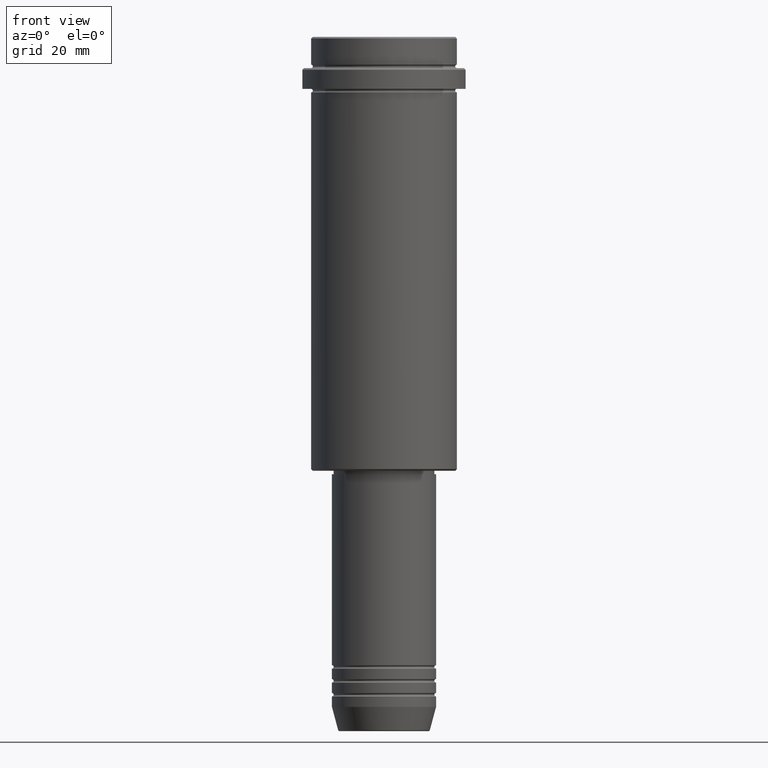
[diagram: clean part render]
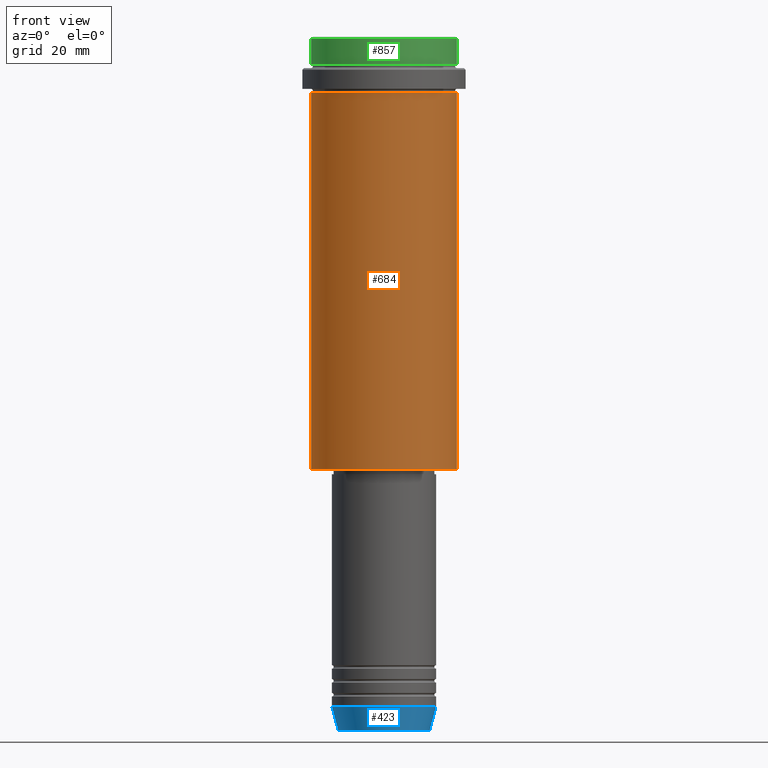
[diagram: same view with three faces highlighted in distinct colors, each labeled with its STEP entity id]
A machine part, front view with three faces highlighted in distinct colors.
Their STEP definitions:

[orange] entity #684 — the highlighted cylindrical surface (partial cylindrical patch) has radius 21 mm, axis along (-0, -0, 1).
#53 = LINE ( 'NONE', #136, #643 ) ;
#77 = CARTESIAN_POINT ( 'NONE',  ( -21.00000000000000000, 2.571758278209441661E-15, -124.5000000000000284 ) ) ;
#100 = DIRECTION ( 'NONE',  ( -0.000000000000000000, -0.000000000000000000, 1.000000000000000000 ) ) ;
#103 = DIRECTION ( 'NONE',  ( -0.000000000000000000, -0.000000000000000000, 1.000000000000000000 ) ) ;
#136 = CARTESIAN_POINT ( 'NONE',  ( -21.00000000000000000, 2.571758278209441661E-15, 0.000000000000000000 ) ) ;
#164 = VERTEX_POINT ( 'NONE', #1168 ) ;
#184 = CARTESIAN_POINT ( 'NONE',  ( 0.000000000000000000, 0.000000000000000000, 0.000000000000000000 ) ) ;
#187 = ORIENTED_EDGE ( 'NONE', *, *, #365, .T. ) ;
#199 = CARTESIAN_POINT ( 'NONE',  ( 0.000000000000000000, 0.000000000000000000, -16.00000000000000355 ) ) ;
#231 = ORIENTED_EDGE ( 'NONE', *, *, #1287, .F. ) ;
#333 = CARTESIAN_POINT ( 'NONE',  ( 21.00000000000000000, 0.000000000000000000, 0.000000000000000000 ) ) ;
#365 = EDGE_CURVE ( 'NONE', #164, #711, #533, .T. ) ;
#373 = EDGE_CURVE ( 'NONE', #906, #711, #594, .T. ) ;
#407 = DIRECTION ( 'NONE',  ( 1.000000000000000000, 0.000000000000000000, 0.000000000000000000 ) ) ;
#476 = AXIS2_PLACEMENT_3D ( 'NONE', #1090, #103, #550 ) ;
#526 = CYLINDRICAL_SURFACE ( 'NONE', #799, 21.00000000000000000 ) ;
#533 = LINE ( 'NONE', #333, #1199 ) ;
#550 = DIRECTION ( 'NONE',  ( -1.000000000000000000, 0.000000000000000000, 0.000000000000000000 ) ) ;
#589 = DIRECTION ( 'NONE',  ( -0.000000000000000000, -0.000000000000000000, 1.000000000000000000 ) ) ;
#594 = CIRCLE ( 'NONE', #637, 21.00000000000000000 ) ;
#637 = AXIS2_PLACEMENT_3D ( 'NONE', #199, #100, #986 ) ;
#643 = VECTOR ( 'NONE', #589, 1000.000000000000000 ) ;
#684 = ADVANCED_FACE ( 'NONE', ( #1167 ), #526, .T. ) ;
#711 = VERTEX_POINT ( 'NONE', #976 ) ;
#799 = AXIS2_PLACEMENT_3D ( 'NONE', #184, #954, #407 ) ;
#802 = CIRCLE ( 'NONE', #476, 21.00000000000000000 ) ;
#876 = ORIENTED_EDGE ( 'NONE', *, *, #1260, .T. ) ;
#895 = EDGE_LOOP ( 'NONE', ( #231, #876, #187, #1341 ) ) ;
#906 = VERTEX_POINT ( 'NONE', #1018 ) ;
#954 = DIRECTION ( 'NONE',  ( -0.000000000000000000, -0.000000000000000000, 1.000000000000000000 ) ) ;
#976 = CARTESIAN_POINT ( 'NONE',  ( 21.00000000000000000, 0.000000000000000000, -16.00000000000000355 ) ) ;
#986 = DIRECTION ( 'NONE',  ( 1.000000000000000000, 0.000000000000000000, 0.000000000000000000 ) ) ;
#1018 = CARTESIAN_POINT ( 'NONE',  ( -21.00000000000000000, 2.571758278209441661E-15, -16.00000000000000355 ) ) ;
#1090 = CARTESIAN_POINT ( 'NONE',  ( 0.000000000000000000, 0.000000000000000000, -124.5000000000000284 ) ) ;
#1167 = FACE_OUTER_BOUND ( 'NONE', #895, .T. ) ;
#1168 = CARTESIAN_POINT ( 'NONE',  ( 21.00000000000000000, 0.000000000000000000, -124.5000000000000284 ) ) ;
#1170 = VERTEX_POINT ( 'NONE', #77 ) ;
#1199 = VECTOR ( 'NONE', #1207, 1000.000000000000000 ) ;
#1207 = DIRECTION ( 'NONE',  ( -0.000000000000000000, -0.000000000000000000, 1.000000000000000000 ) ) ;
#1260 = EDGE_CURVE ( 'NONE', #1170, #164, #802, .T. ) ;
#1287 = EDGE_CURVE ( 'NONE', #1170, #906, #53, .T. ) ;
#1341 = ORIENTED_EDGE ( 'NONE', *, *, #373, .F. ) ;

[blue] entity #423 — the highlighted conical surface has half-angle 15 deg.
#89 = DIRECTION ( 'NONE',  ( -0.000000000000000000, -0.000000000000000000, 1.000000000000000000 ) ) ;
#115 = CARTESIAN_POINT ( 'NONE',  ( 0.000000000000000000, 0.000000000000000000, -199.6294095225512706 ) ) ;
#139 = FACE_OUTER_BOUND ( 'NONE', #1350, .T. ) ;
#244 = CARTESIAN_POINT ( 'NONE',  ( -15.00000000000000000, 1.836970198721029589E-15, -193.0000000000000000 ) ) ;
#327 = DIRECTION ( 'NONE',  ( 0.2588190451025213501, 0.000000000000000000, 0.9659258262890680902 ) ) ;
#342 = CARTESIAN_POINT ( 'NONE',  ( -13.22365507213719660, 1.728200442216588780E-15, -199.6294095225512706 ) ) ;
#378 = EDGE_CURVE ( 'NONE', #1371, #1100, #958, .T. ) ;
#409 = AXIS2_PLACEMENT_3D ( 'NONE', #903, #1122, #582 ) ;
#423 = ADVANCED_FACE ( 'NONE', ( #139 ), #470, .T. ) ;
#455 = ORIENTED_EDGE ( 'NONE', *, *, #818, .T. ) ;
#467 = LINE ( 'NONE', #907, #1293 ) ;
#470 = CONICAL_SURFACE ( 'NONE', #409, 15.00000000000000000, 0.2617993877991500740 ) ;
#481 = ORIENTED_EDGE ( 'NONE', *, *, #785, .T. ) ;
#523 = VECTOR ( 'NONE', #327, 1000.000000000000000 ) ;
#532 = DIRECTION ( 'NONE',  ( 1.000000000000000000, 0.000000000000000000, 0.000000000000000000 ) ) ;
#538 = CARTESIAN_POINT ( 'NONE',  ( 15.00000000000000000, 0.000000000000000000, -193.0000000000000000 ) ) ;
#582 = DIRECTION ( 'NONE',  ( 1.000000000000000000, 0.000000000000000000, 0.000000000000000000 ) ) ;
#622 = VERTEX_POINT ( 'NONE', #743 ) ;
#743 = CARTESIAN_POINT ( 'NONE',  ( 13.22365507213719482, 0.000000000000000000, -199.6294095225512706 ) ) ;
#769 = ORIENTED_EDGE ( 'NONE', *, *, #929, .F. ) ;
#785 = EDGE_CURVE ( 'NONE', #863, #622, #909, .T. ) ;
#812 = ORIENTED_EDGE ( 'NONE', *, *, #378, .F. ) ;
#818 = EDGE_CURVE ( 'NONE', #622, #1100, #1087, .T. ) ;
#863 = VERTEX_POINT ( 'NONE', #342 ) ;
#878 = DIRECTION ( 'NONE',  ( -0.000000000000000000, -0.000000000000000000, 1.000000000000000000 ) ) ;
#903 = CARTESIAN_POINT ( 'NONE',  ( 0.000000000000000000, 0.000000000000000000, -193.0000000000000000 ) ) ;
#907 = CARTESIAN_POINT ( 'NONE',  ( -15.00000000000000000, 1.836970198721029589E-15, -193.0000000000000000 ) ) ;
#909 = CIRCLE ( 'NONE', #1200, 13.22365507213719482 ) ;
#929 = EDGE_CURVE ( 'NONE', #863, #1371, #467, .T. ) ;
#958 = CIRCLE ( 'NONE', #1179, 15.00000000000000000 ) ;
#1087 = LINE ( 'NONE', #538, #523 ) ;
#1100 = VERTEX_POINT ( 'NONE', #1145 ) ;
#1122 = DIRECTION ( 'NONE',  ( -0.000000000000000000, -0.000000000000000000, 1.000000000000000000 ) ) ;
#1145 = CARTESIAN_POINT ( 'NONE',  ( 15.00000000000000000, 0.000000000000000000, -193.0000000000000000 ) ) ;
#1179 = AXIS2_PLACEMENT_3D ( 'NONE', #1415, #878, #1402 ) ;
#1200 = AXIS2_PLACEMENT_3D ( 'NONE', #115, #89, #532 ) ;
#1293 = VECTOR ( 'NONE', #1338, 1000.000000000000000 ) ;
#1338 = DIRECTION ( 'NONE',  ( -0.2588190451025213501, 3.169619151431772337E-17, 0.9659258262890680902 ) ) ;
#1350 = EDGE_LOOP ( 'NONE', ( #769, #481, #455, #812 ) ) ;
#1371 = VERTEX_POINT ( 'NONE', #244 ) ;
#1402 = DIRECTION ( 'NONE',  ( 1.000000000000000000, 0.000000000000000000, 0.000000000000000000 ) ) ;
#1415 = CARTESIAN_POINT ( 'NONE',  ( 0.000000000000000000, 0.000000000000000000, -193.0000000000000000 ) ) ;

[green] entity #857 — the highlighted cylindrical surface (partial cylindrical patch) has radius 21 mm, axis along (-0, -0, 1).
#28 = CYLINDRICAL_SURFACE ( 'NONE', #567, 21.00000000000000000 ) ;
#95 = ORIENTED_EDGE ( 'NONE', *, *, #668, .T. ) ;
#112 = VERTEX_POINT ( 'NONE', #948 ) ;
#133 = FACE_OUTER_BOUND ( 'NONE', #397, .T. ) ;
#146 = VERTEX_POINT ( 'NONE', #1267 ) ;
#151 = AXIS2_PLACEMENT_3D ( 'NONE', #924, #1351, #1171 ) ;
#309 = VERTEX_POINT ( 'NONE', #991 ) ;
#329 = ORIENTED_EDGE ( 'NONE', *, *, #911, .F. ) ;
#397 = EDGE_LOOP ( 'NONE', ( #329, #1411, #741, #95 ) ) ;
#462 = DIRECTION ( 'NONE',  ( -0.000000000000000000, -0.000000000000000000, 1.000000000000000000 ) ) ;
#564 = DIRECTION ( 'NONE',  ( -0.000000000000000000, -0.000000000000000000, 1.000000000000000000 ) ) ;
#567 = AXIS2_PLACEMENT_3D ( 'NONE', #1113, #462, #1012 ) ;
#604 = CARTESIAN_POINT ( 'NONE',  ( 0.000000000000000000, 0.000000000000000000, -0.5000000000000108802 ) ) ;
#668 = EDGE_CURVE ( 'NONE', #146, #309, #1382, .T. ) ;
#686 = VERTEX_POINT ( 'NONE', #836 ) ;
#714 = EDGE_CURVE ( 'NONE', #112, #146, #761, .T. ) ;
#734 = CIRCLE ( 'NONE', #151, 21.00000000000000000 ) ;
#738 = DIRECTION ( 'NONE',  ( 1.000000000000000000, 0.000000000000000000, 0.000000000000000000 ) ) ;
#741 = ORIENTED_EDGE ( 'NONE', *, *, #714, .T. ) ;
#761 = LINE ( 'NONE', #882, #1336 ) ;
#813 = CARTESIAN_POINT ( 'NONE',  ( -21.00000000000000000, 2.571758278209441661E-15, 0.000000000000000000 ) ) ;
#836 = CARTESIAN_POINT ( 'NONE',  ( -21.00000000000000000, 2.571758278209441661E-15, -7.999999999999998224 ) ) ;
#857 = ADVANCED_FACE ( 'NONE', ( #133 ), #28, .T. ) ;
#882 = CARTESIAN_POINT ( 'NONE',  ( 21.00000000000000000, 0.000000000000000000, 0.000000000000000000 ) ) ;
#891 = VECTOR ( 'NONE', #564, 1000.000000000000000 ) ;
#911 = EDGE_CURVE ( 'NONE', #686, #309, #1213, .T. ) ;
#924 = CARTESIAN_POINT ( 'NONE',  ( 0.000000000000000000, 0.000000000000000000, -7.999999999999998224 ) ) ;
#948 = CARTESIAN_POINT ( 'NONE',  ( 21.00000000000000000, 0.000000000000000000, -7.999999999999998224 ) ) ;
#991 = CARTESIAN_POINT ( 'NONE',  ( -21.00000000000000000, 2.571758278209441661E-15, -0.5000000000000108802 ) ) ;
#1012 = DIRECTION ( 'NONE',  ( 1.000000000000000000, 0.000000000000000000, 0.000000000000000000 ) ) ;
#1040 = DIRECTION ( 'NONE',  ( 0.000000000000000000, 0.000000000000000000, -1.000000000000000000 ) ) ;
#1085 = EDGE_CURVE ( 'NONE', #686, #112, #734, .T. ) ;
#1102 = DIRECTION ( 'NONE',  ( -0.000000000000000000, -0.000000000000000000, 1.000000000000000000 ) ) ;
#1113 = CARTESIAN_POINT ( 'NONE',  ( 0.000000000000000000, 0.000000000000000000, 0.000000000000000000 ) ) ;
#1171 = DIRECTION ( 'NONE',  ( 1.000000000000000000, 0.000000000000000000, 0.000000000000000000 ) ) ;
#1213 = LINE ( 'NONE', #813, #891 ) ;
#1224 = AXIS2_PLACEMENT_3D ( 'NONE', #604, #1040, #738 ) ;
#1267 = CARTESIAN_POINT ( 'NONE',  ( 21.00000000000000000, 0.000000000000000000, -0.5000000000000108802 ) ) ;
#1336 = VECTOR ( 'NONE', #1102, 1000.000000000000000 ) ;
#1351 = DIRECTION ( 'NONE',  ( -0.000000000000000000, -0.000000000000000000, 1.000000000000000000 ) ) ;
#1382 = CIRCLE ( 'NONE', #1224, 21.00000000000000000 ) ;
#1411 = ORIENTED_EDGE ( 'NONE', *, *, #1085, .T. ) ;